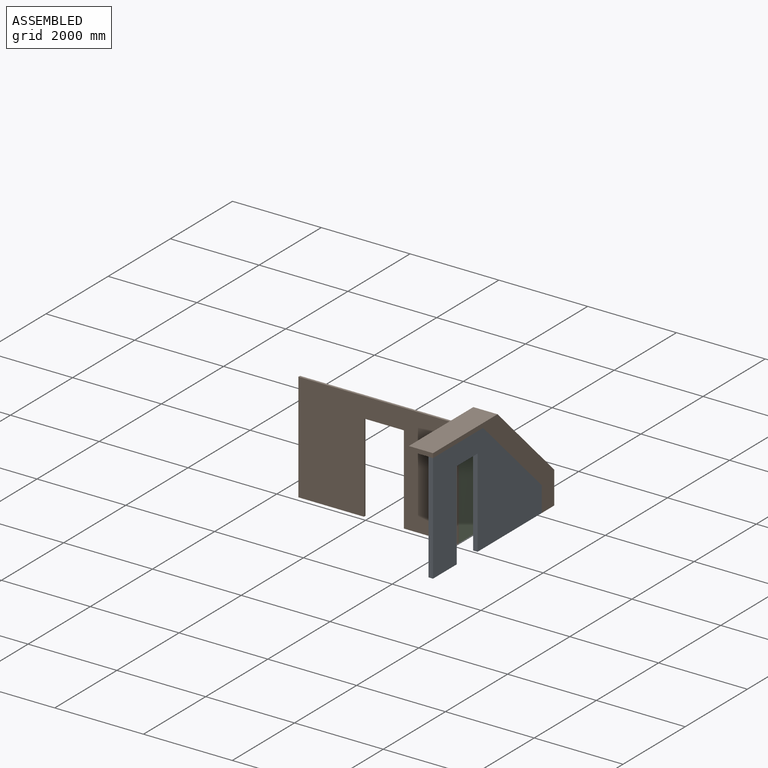
[diagram: assembled view]
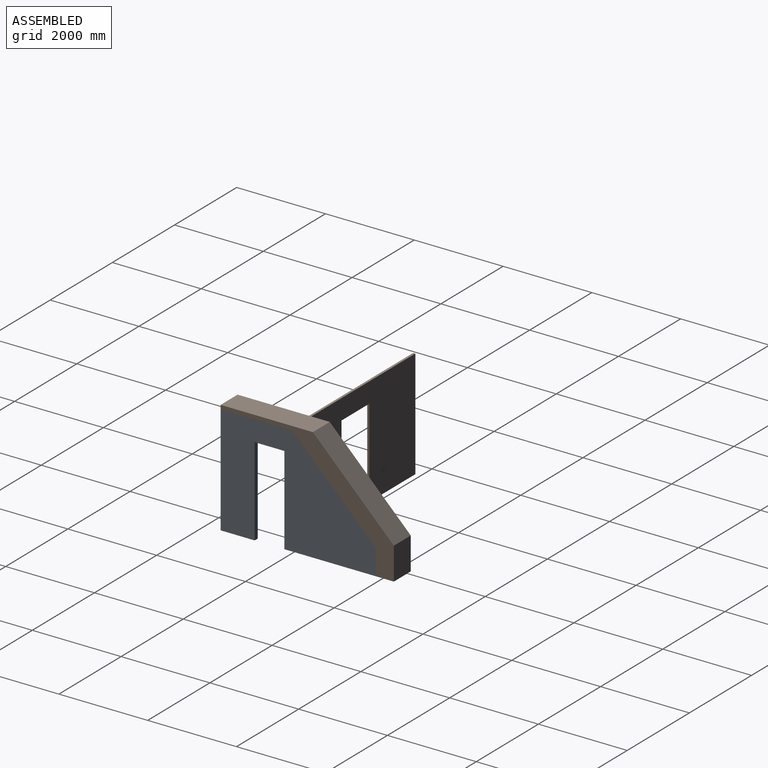
[diagram: assembled view, second angle]
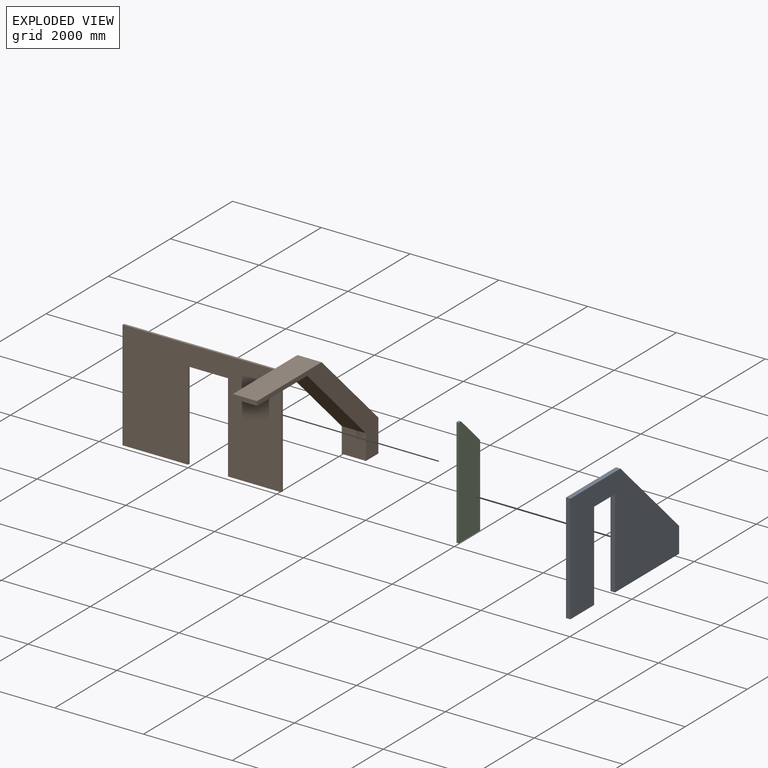
[diagram: exploded view]
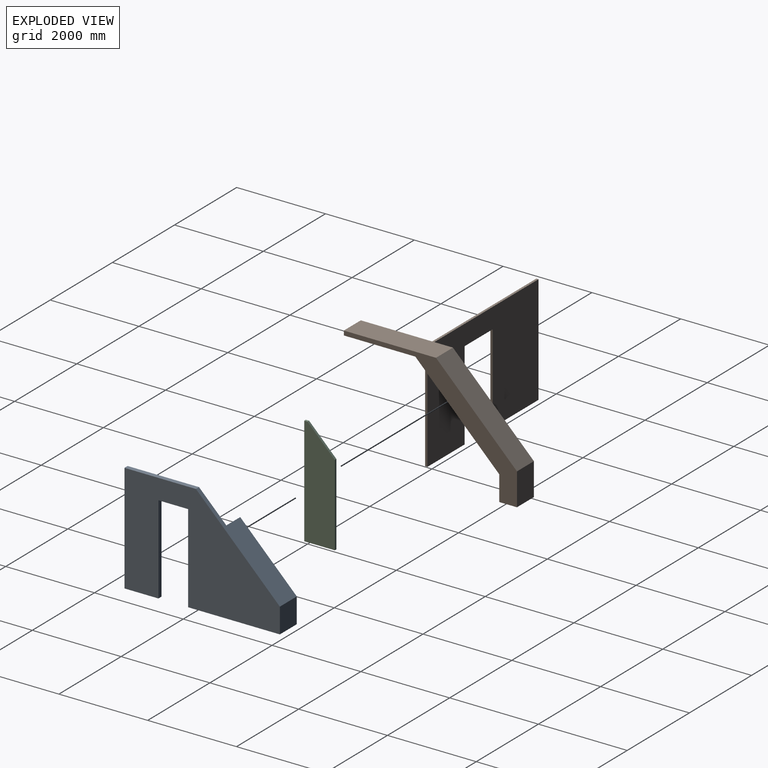
[diagram: exploded view, second angle]
ASSEMBLY  parts=3 mates=6
PART A: 13 faces, bbox 545x3500x2455 mm
  f0: plane 2455x2225mm, normal (-1,0,0), area 3933262.5mm2, adj f1,f3,f4,f5,f7,f8,f9,f10
  f1: plane 2065x545mm, normal (0,0,-1), area 773875mm2, adj f0,f2,f6,f10,f11,f12
  f2: plane 3500x2455mm, normal (1,0,0), area 5466450mm2, adj f1,f3,f4,f5,f6,f7,f8,f9
  f3: plane 1610x100mm, normal (0,0,1), area 161000mm2, adj f0,f2,f4,f7
  f4: plane 2455x100mm, normal (0,-1,0), area 245500mm2, adj f0,f2,f3,f5
  f5: plane 765x100mm, normal (0,0,-1), area 76500mm2, adj f0,f2,f4,f8
  f6: plane 565x545mm, normal (0,1,0), area 307925mm2, adj f1,f2,f7,f12
  f7: plane 1890x1890mm, normal (0,0.71,0.71), area 1069675.8mm2, adj f0,f2,f3,f6,f11,f12
  f8: plane 2000x100mm, normal (0,1,0), area 200000mm2, adj f0,f2,f5,f9
  f9: plane 670x100mm, normal (0,0,-1), area 67000mm2, adj f0,f2,f8,f10
  f10: plane 2000x100mm, normal (0,-1,0), area 200000mm2, adj f0,f1,f2,f9
  f11: plane 1840x445mm, normal (0,-1,0), area 818800mm2, adj f0,f1,f7,f12
  f12: plane 1840x1275mm, normal (-1,0,0), area 1533187.5mm2, adj f1,f6,f7,f11
PART B: 20 faces, bbox 4071x3900x2555 mm
  f0: plane 2000x50mm, normal (-1,0,0), area 100000mm2, adj f11,f12,f14,f16
  f1: plane 545x100mm, normal (0,-1,0), area 54500mm2, adj f2,f8,f9,f10
  f2: plane 1610x545mm, normal (0,0,-1), area 874950mm2, adj f1,f3,f9,f10,f12,f14,f15
  f3: plane 1890x1890mm, normal (0,-0.71,-0.71), area 1456710.7mm2, adj f2,f4,f9,f10
  f4: plane 565x545mm, normal (0,-1,0), area 307925mm2, adj f3,f5,f9,f10
  f5: plane 545x400mm, normal (0,0,-1), area 218000mm2, adj f4,f6,f9,f10
  f6: plane 730.69x545mm, normal (0,1,0), area 398223.6mm2, adj f5,f7,f9,f10
  f7: plane 1824.31x1824.31mm, normal (0,0.71,0.71), area 1406083.9mm2, adj f6,f8,f9,f10
  f8: plane 2075.69x545mm, normal (0,0,1), area 1131248.6mm2, adj f1,f7,f9,f10
  f9: plane 3900x2555mm, normal (-1,0,0), area 1493988.2mm2, adj f1,f2,f3,f4,f5,f6,f7,f8
  f10: plane 3900x2555mm, normal (1,0,0), area 1493988.2mm2, adj f1,f2,f3,f4,f5,f6,f7,f8
  f11: plane 1200x50mm, normal (0,0,-1), area 60000mm2, adj f0,f12,f14,f15
  f12: plane 3576x2455mm, normal (0,1,0), area 6979080mm2, adj f0,f2,f11,f13,f15,f16,f17,f18
  f13: plane 3526x50mm, normal (0,0,1), area 176300mm2, adj f9,f12,f14,f19
  f14: plane 3576x2455mm, normal (0,-1,0), area 6979080mm2, adj f0,f2,f11,f13,f15,f16,f17,f18
  f15: plane 2455x50mm, normal (1,0,0), area 122750mm2, adj f2,f11,f12,f14
  f16: plane 900x50mm, normal (0,0,-1), area 45000mm2, adj f0,f12,f14,f17
  f17: plane 2000x50mm, normal (1,0,0), area 100000mm2, adj f12,f14,f16,f18
  f18: plane 1476x50mm, normal (0,0,-1), area 73800mm2, adj f12,f14,f17,f19
  f19: plane 2455x50mm, normal (-1,0,0), area 122750mm2, adj f12,f13,f14,f18
PART C: 7 faces, bbox 50x690x2455 mm
  f0: plane 2455x50mm, normal (0,-1,0), area 122750mm2, adj f1,f4,f5,f6
  f1: plane 75x50mm, normal (0,0,1), area 3750mm2, adj f0,f2,f5,f6
  f2: plane 615x615mm, normal (0,0.71,0.71), area 43487.1mm2, adj f1,f3,f5,f6
  f3: plane 1840x50mm, normal (0,1,0), area 92000mm2, adj f2,f4,f5,f6
  f4: plane 690x50mm, normal (0,0,-1), area 34500mm2, adj f0,f3,f5,f6
  f5: plane 2455x690mm, normal (-1,0,0), area 1504837.5mm2, adj f0,f1,f2,f3,f4
  f6: plane 2455x690mm, normal (1,0,0), area 1504837.5mm2, adj f0,f1,f2,f3,f4
PLACE A t=(596.63,-327.8,863.08)mm
PLACE B t=(596.63,-327.8,863.08)mm
PLACE C t=(596.63,-327.8,863.08)mm
MATE planar A.f2 <-> B.f10  axis (1,0,0) through (596.63,4.3,723.89)mm
MATE planar C.f4 <-> A.f1  axis (0,0,-1) through (76.63,340.9,-364.15)mm
MATE planar A.f3 <-> B.f2  axis (0,0,1) through (546.63,-734.1,2090.85)mm
MATE planar C.f3 <-> A.f11  axis (0,1,0) through (76.63,685.9,555.85)mm
MATE planar A.f4 <-> B.f1  axis (0,-1,0) through (596.63,-1539.1,2090.85)mm
MATE planar C.f5 <-> A.f12  axis (-1,0,0) through (51.63,323.31,734.85)mm
